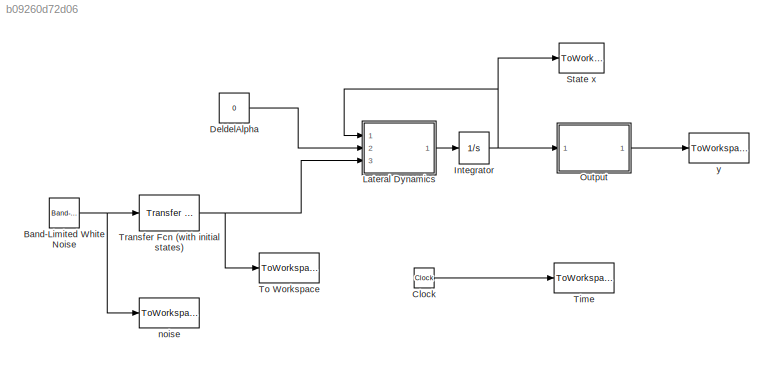
MODEL slx_b09260d72d06
KIND model
CONFIG AbsTol = auto
CONFIG EnableMultiTasking = off
CONFIG FixedStep = 0.1
CONFIG MaxStep = auto
CONFIG MinStep = auto
CONFIG RelTol = 1e-3
CONFIG SampleTimeConstraint = Unconstrained
CONFIG Solver = ode4
CONFIG SolverName = ode4
CONFIG StartTime = 0.0
CONFIG StopTime = 10.0
BLOCK [Reference] Band-Limited White Noise   REF=simulink/Sources/Band-Limited
White Noise
  Ports = [0, 1]
  SourceBlock = simulink/Sources/Band-Limited\nWhite Noise
  SourceProductBaseCode = SL
  SourceProductName = Simulink
  SourceType = Band-Limited White Noise.
BLOCK [Clock] Clock
BLOCK [Constant] DeldelAlpha
  Value = 0
BLOCK [Integrator] Integrator
  InitialCondition = x0
  Ports = [1, 1]
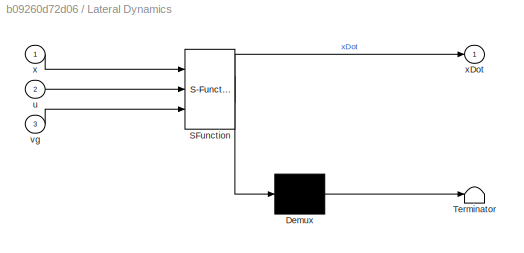
BLOCK [SubSystem] Lateral Dynamics
  ErrorFcn = Stateflow.Translate.translate
  PermitHierarchicalResolution = ExplicitOnly
  Ports = [3, 1]
  RequestExecContextInheritance = off
  SFBlockType = MATLAB Function
  TreatAsAtomicUnit = on
  Variant = off
BLOCK [Demux] Lateral Dynamics/ Demux 
  Outputs = 1
  Ports = [1, 1]
BLOCK [S-Function] Lateral Dynamics/ SFunction 
  EnableBusSupport = on
  FunctionName = sf_sfun
  PortCounts = [3 2]
  Ports = [3, 2]
  SFcnIsStateOwnerBlock = off
  SFunctionDeploymentMode = off
  Tag = Stateflow S-Function Prob2 2
BLOCK [Terminator] Lateral Dynamics/ Terminator 
BLOCK [Inport] Lateral Dynamics/u
  IconDisplay = Port number
  Port = 2
BLOCK [Inport] Lateral Dynamics/vg
  IconDisplay = Port number
  Port = 3
BLOCK [Inport] Lateral Dynamics/x
  IconDisplay = Port number
BLOCK [Outport] Lateral Dynamics/xDot
  IconDisplay = Port number
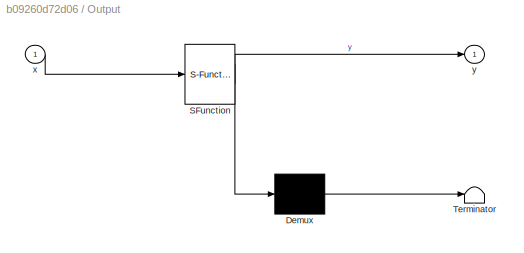
BLOCK [SubSystem] Output 
  ErrorFcn = Stateflow.Translate.translate
  PermitHierarchicalResolution = ExplicitOnly
  Ports = [1, 1]
  RequestExecContextInheritance = off
  SFBlockType = MATLAB Function
  TreatAsAtomicUnit = on
  Variant = off
BLOCK [Demux] Output / Demux 
  Outputs = 1
  Ports = [1, 1]
BLOCK [S-Function] Output / SFunction 
  EnableBusSupport = on
  FunctionName = sf_sfun
  PortCounts = [1 2]
  Ports = [1, 2]
  SFcnIsStateOwnerBlock = off
  SFunctionDeploymentMode = off
  Tag = Stateflow S-Function Prob2 1
BLOCK [Terminator] Output / Terminator 
BLOCK [Inport] Output /x
  IconDisplay = Port number
BLOCK [Outport] Output /y
  IconDisplay = Port number
BLOCK [ToWorkspace] State x 
  FixptAsFi = on
  MaxDataPoints = inf
  Ports = [1]
  SampleTime = -1
  Save2DSignal = 2-D array (concatenate along first dimension)
  VariableName = x
BLOCK [ToWorkspace] Time 
  FixptAsFi = on
  MaxDataPoints = inf
  Ports = [1]
  SampleTime = -1
  Save2DSignal = 2-D array (concatenate along first dimension)
  VariableName = time
BLOCK [ToWorkspace] To Workspace 
  FixptAsFi = on
  MaxDataPoints = inf
  Ports = [1]
  SampleTime = -1
  Save2DSignal = 2-D array (concatenate along first dimension)
  VariableName = vg
BLOCK [Reference] Transfer Fcn (with initial states)   REF=simulink_extras/Additional
Linear/Transfer Fcn
(with initial states)
  Ports = [1, 1]
  SourceBlock = simulink_extras/Additional\nLinear/Transfer Fcn\n(with initial states)
  SourceProductBaseCode = SL
  SourceProductName = Simulink
  SourceType = Transfer Function with Initial States
BLOCK [ToWorkspace] noise 
  FixptAsFi = on
  MaxDataPoints = inf
  Ports = [1]
  SampleTime = -1
  Save2DSignal = 2-D array (concatenate along first dimension)
  VariableName = Noise
BLOCK [ToWorkspace] y 
  FixptAsFi = on
  MaxDataPoints = inf
  Ports = [1]
  SampleTime = -1
  Save2DSignal = 2-D array (concatenate along first dimension)
  VariableName = y
NET Band-Limited White Noise :1 -> Transfer Fcn (with initial states) :1, noise :1
LINE Clock:1 -> Time :1
LINE DeldelAlpha:1 -> Lateral Dynamics:2
NET Integrator:1 -> Lateral Dynamics:1, Output :1, State x :1
LINE Lateral Dynamics:1 -> Integrator:1
LINE Output :1 -> y :1
NET Transfer Fcn (with initial states) :1 -> Lateral Dynamics:3, To Workspace :1
note: NET lines group one-source signal fan-out (src -> all destinations, sorted); 1:1 wires keep LINE
CHART Output  states=1 transitions=1
  STATE_LABEL 'eML_blk_kernel()'
  STATE_LABEL 'SCRIPT:\nfunction y = fcn(x)\n\nu0 = 272; % m/s \nC = [-0.5*u0 0 0 0];\n\ny = C*x;\n'
CHART Lateral Dynamics states=1 transitions=1
  STATE_LABEL 'eML_blk_kernel()'
  STATE_LABEL "SCRIPT:\nfunction xDot = fcn(x,u,vg)\n\nA = [-0.5,  0, -1, 0.02;\n     -150, -7, -0.15, 0;\n     30, 0.1, -1, 0; \n     0 1 0 0]; \n \nB = [-0.02, 56, 1, 0]';\n\nG = [0.5; 150; -30; 0];  \n\nxDot = A*x+ B*u + G*vg;\n"
